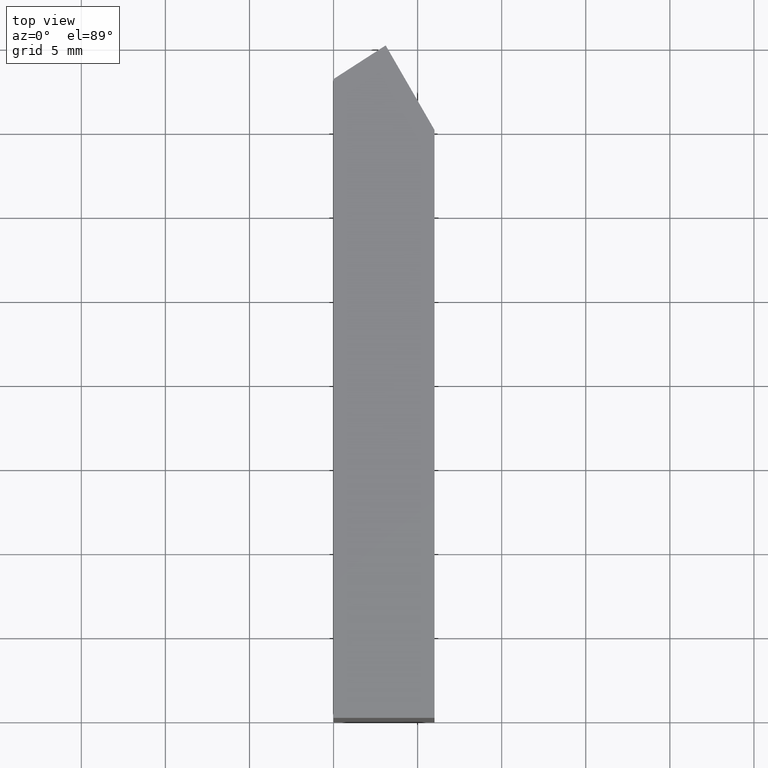
[diagram: clean part render]
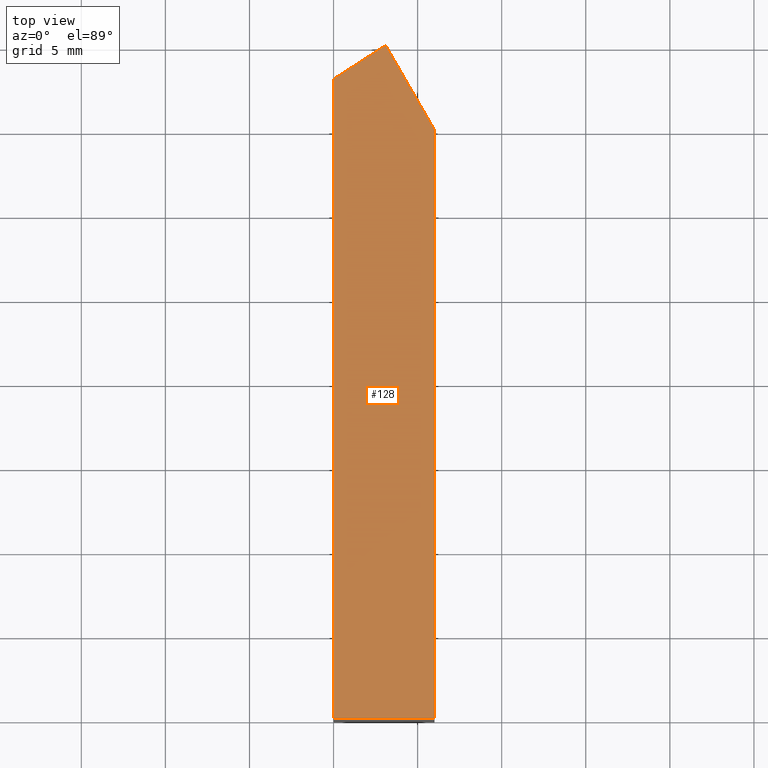
[diagram: same view with one face highlighted and labeled with its STEP entity id]
A machine part, top view. The second image highlights one B-rep face of the part: STEP entity #128.
In plain terms, the highlighted planar face has unit normal (0, 0, 1).
Its self-contained STEP definition (entity closure, byte-faithful):
#22=FACE_OUTER_BOUND('',#29,.T.);
#29=EDGE_LOOP('',(#110,#111,#112,#113,#114));
#35=LINE('',#205,#50);
#38=LINE('',#210,#53);
#40=LINE('',#214,#55);
#42=LINE('',#218,#57);
#44=LINE('',#221,#59);
#50=VECTOR('',#170,10.);
#53=VECTOR('',#175,10.);
#55=VECTOR('',#179,10.);
#57=VECTOR('',#183,10.);
#59=VECTOR('',#187,10.);
#65=VERTEX_POINT('',#203);
#66=VERTEX_POINT('',#204);
#67=VERTEX_POINT('',#209);
#68=VERTEX_POINT('',#213);
#69=VERTEX_POINT('',#217);
#75=EDGE_CURVE('',#65,#66,#35,.T.);
#78=EDGE_CURVE('',#66,#67,#38,.T.);
#80=EDGE_CURVE('',#67,#68,#40,.T.);
#82=EDGE_CURVE('',#68,#69,#42,.T.);
#84=EDGE_CURVE('',#69,#65,#44,.T.);
#110=ORIENTED_EDGE('',*,*,#75,.F.);
#111=ORIENTED_EDGE('',*,*,#84,.F.);
#112=ORIENTED_EDGE('',*,*,#82,.F.);
#113=ORIENTED_EDGE('',*,*,#80,.F.);
#114=ORIENTED_EDGE('',*,*,#78,.F.);
#121=PLANE('',#158);
#128=ADVANCED_FACE('',(#22),#121,.T.);
#158=AXIS2_PLACEMENT_3D('',#222,#188,#189);
#170=DIRECTION('',(-1.75576109523537E-16,1.,0.));
#175=DIRECTION('',(0.840270778975161,0.542166965058252,0.));
#179=DIRECTION('',(0.5,-0.866025403784438,0.));
#183=DIRECTION('',(3.17419791275863E-16,-1.,0.));
#187=DIRECTION('',(-1.,-1.22464679914735E-16,0.));
#188=DIRECTION('center_axis',(0.,0.,1.));
#189=DIRECTION('ref_axis',(1.,0.,0.));
#203=CARTESIAN_POINT('',(1.11022302462516E-15,-7.0369057539925E-16,8.));
#204=CARTESIAN_POINT('',(-5.56166913726925E-15,38.,8.));
#205=CARTESIAN_POINT('',(1.11022302462516E-15,-7.0369057539925E-16,8.));
#209=CARTESIAN_POINT('',(3.09967531454034,40.,8.));
#210=CARTESIAN_POINT('',(-5.56166913726925E-15,38.,8.));
#213=CARTESIAN_POINT('',(6.,34.9764902863377,8.));
#214=CARTESIAN_POINT('',(3.09967531454034,40.,8.));
#217=CARTESIAN_POINT('',(6.00000000000001,3.10975040891632E-17,8.));
#218=CARTESIAN_POINT('',(6.,34.9764902863377,8.));
#221=CARTESIAN_POINT('',(6.00000000000001,3.10975040891632E-17,8.));
#222=CARTESIAN_POINT('Origin',(2.93862086603705,19.1599027026643,8.));